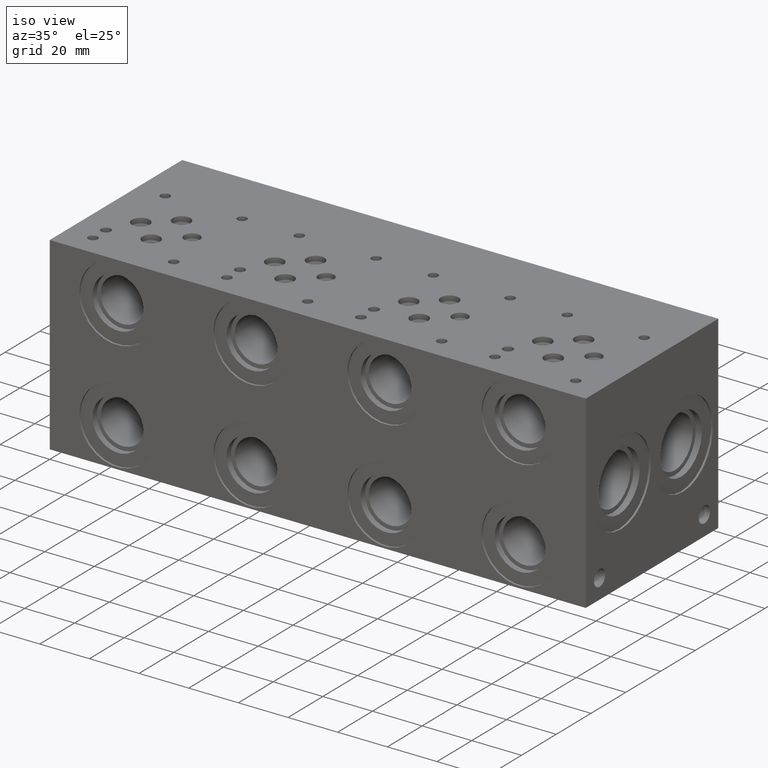
[diagram: clean part render]
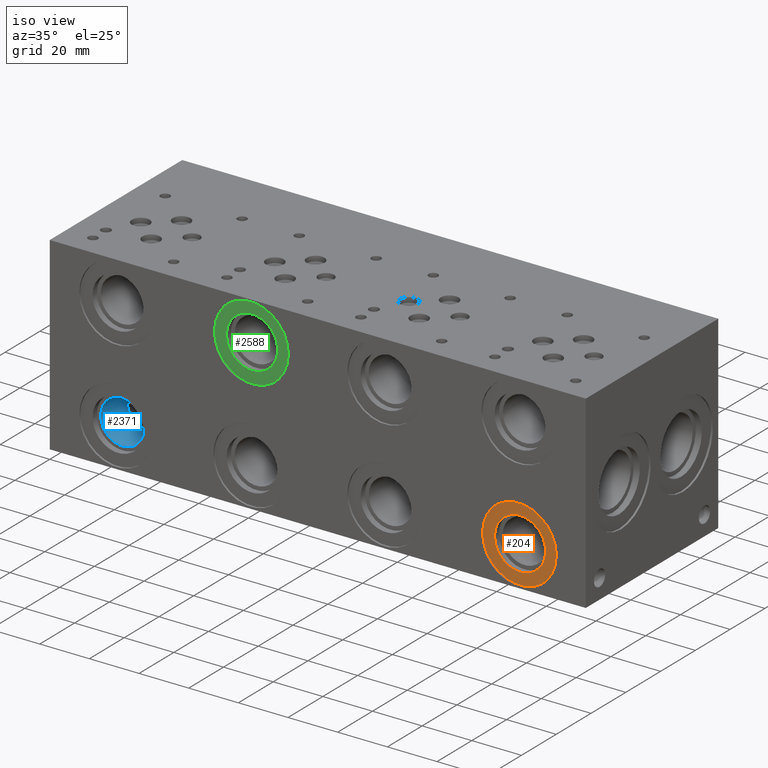
[diagram: same view with three faces highlighted in distinct colors, each labeled with its STEP entity id]
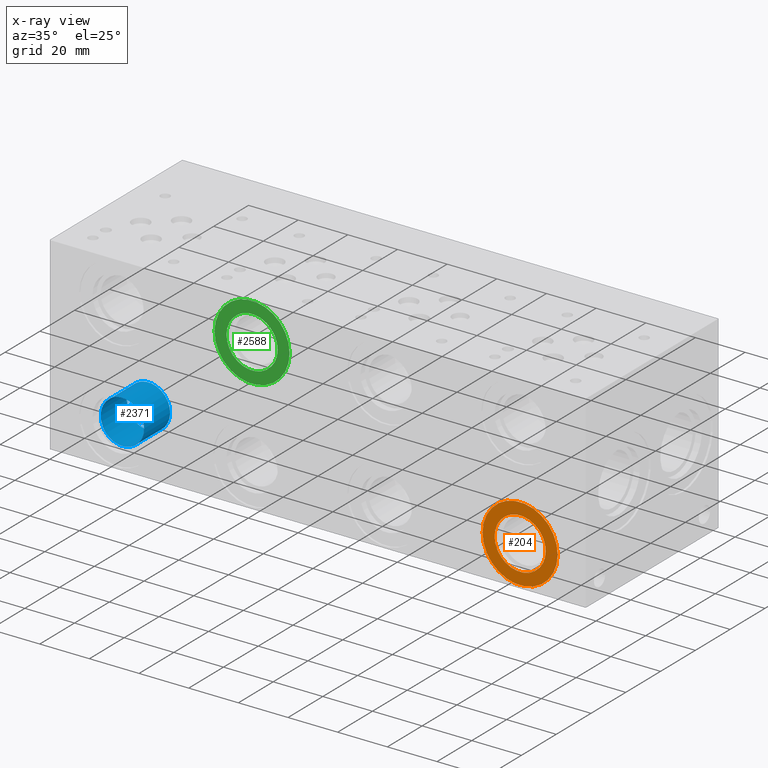
[diagram: x-ray of the same camera — body ghosted, the three highlighted faces saturated]
A machine part, iso view with three faces highlighted in distinct colors.
The next image is the same camera in x-ray (body ghosted, the three faces saturated) — at least one of them is partly hidden behind the body in this view.
Their STEP definitions:

[orange] entity #204 — the highlighted planar face has unit normal (0, 1, 0).
#170=CARTESIAN_POINT('',(199.1995,0.7874,15.875000000000002));
#171=VERTEX_POINT('',#170);
#172=CARTESIAN_POINT('',(188.89980000000003,0.7874,15.875000000000002));
#173=DIRECTION('',(0.0,-1.0,0.0));
#174=DIRECTION('',(1.0,0.0,0.0));
#175=AXIS2_PLACEMENT_3D('',#172,#173,#174);
#176=CIRCLE('',#175,10.299699999999987);
#177=EDGE_CURVE('',#171,#171,#176,.T.);
#185=CARTESIAN_POINT('',(201.61250000000001,0.7874,15.875000000000002));
#186=DIRECTION('',(0.0,1.0,0.0));
#187=DIRECTION('',(0.0,0.0,1.0));
#188=AXIS2_PLACEMENT_3D('',#185,#186,#187);
#189=PLANE('',#188);
#190=CARTESIAN_POINT('',(204.02550000000002,0.7874,15.875000000000002));
#191=VERTEX_POINT('',#190);
#192=CARTESIAN_POINT('',(188.89980000000003,0.7874,15.875000000000002));
#193=DIRECTION('',(0.0,-1.0,0.0));
#194=DIRECTION('',(1.0,0.0,0.0));
#195=AXIS2_PLACEMENT_3D('',#192,#193,#194);
#196=CIRCLE('',#195,15.125700000000002);
#197=EDGE_CURVE('',#191,#191,#196,.T.);
#198=ORIENTED_EDGE('',*,*,#197,.T.);
#199=EDGE_LOOP('',(#198));
#200=FACE_OUTER_BOUND('',#199,.T.);
#201=ORIENTED_EDGE('',*,*,#177,.F.);
#202=EDGE_LOOP('',(#201));
#203=FACE_BOUND('',#202,.T.);
#204=ADVANCED_FACE('',(#200,#203),#189,.F.);

[blue] entity #2371 — the highlighted cylindrical surface (bore or boss wall) has radius 8.7503 mm, axis along (0, -1, 0).
#2337=CARTESIAN_POINT('',(35.725100000000005,18.265211900000004,15.875000000000002));
#2338=VERTEX_POINT('',#2337);
#2339=CARTESIAN_POINT('',(26.974800000000002,18.265211900000004,15.875000000000002));
#2340=DIRECTION('',(0.0,-1.0,0.0));
#2341=DIRECTION('',(1.0,0.0,0.0));
#2342=AXIS2_PLACEMENT_3D('',#2339,#2340,#2341);
#2343=CIRCLE('',#2342,8.750300000000003);
#2344=EDGE_CURVE('',#2338,#2338,#2343,.T.);
#2352=CARTESIAN_POINT('',(26.974800000000002,10.77090595,15.875000000000002));
#2353=DIRECTION('',(0.0,-1.0,0.0));
#2354=DIRECTION('',(1.0,0.0,0.0));
#2355=AXIS2_PLACEMENT_3D('',#2352,#2353,#2354);
#2356=CYLINDRICAL_SURFACE('',#2355,8.750300000000003);
#2357=CARTESIAN_POINT('',(35.725100000000005,3.276600000000001,15.875000000000002));
#2358=VERTEX_POINT('',#2357);
#2359=CARTESIAN_POINT('',(26.974800000000002,3.276600000000001,15.875000000000002));
#2360=DIRECTION('',(0.0,-1.0,0.0));
#2361=DIRECTION('',(1.0,0.0,0.0));
#2362=AXIS2_PLACEMENT_3D('',#2359,#2360,#2361);
#2363=CIRCLE('',#2362,8.750300000000003);
#2364=EDGE_CURVE('',#2358,#2358,#2363,.T.);
#2365=ORIENTED_EDGE('',*,*,#2364,.T.);
#2366=EDGE_LOOP('',(#2365));
#2367=FACE_OUTER_BOUND('',#2366,.T.);
#2368=ORIENTED_EDGE('',*,*,#2344,.F.);
#2369=EDGE_LOOP('',(#2368));
#2370=FACE_BOUND('',#2369,.T.);
#2371=ADVANCED_FACE('',(#2367,#2370),#2356,.F.);

[green] entity #2588 — the highlighted planar face has unit normal (0, 1, 0).
#2554=CARTESIAN_POINT('',(91.249499999999998,0.7874,60.325000000000003));
#2555=VERTEX_POINT('',#2554);
#2556=CARTESIAN_POINT('',(80.949799999999996,0.7874,60.325000000000003));
#2557=DIRECTION('',(0.0,-1.0,0.0));
#2558=DIRECTION('',(1.0,0.0,0.0));
#2559=AXIS2_PLACEMENT_3D('',#2556,#2557,#2558);
#2560=CIRCLE('',#2559,10.299700000000005);
#2561=EDGE_CURVE('',#2555,#2555,#2560,.T.);
#2569=CARTESIAN_POINT('',(93.662500000000009,0.7874,60.325000000000003));
#2570=DIRECTION('',(0.0,1.0,0.0));
#2571=DIRECTION('',(0.0,0.0,1.0));
#2572=AXIS2_PLACEMENT_3D('',#2569,#2570,#2571);
#2573=PLANE('',#2572);
#2574=CARTESIAN_POINT('',(96.075500000000005,0.7874,60.325000000000003));
#2575=VERTEX_POINT('',#2574);
#2576=CARTESIAN_POINT('',(80.949799999999996,0.7874,60.325000000000003));
#2577=DIRECTION('',(0.0,-1.0,0.0));
#2578=DIRECTION('',(1.0,0.0,0.0));
#2579=AXIS2_PLACEMENT_3D('',#2576,#2577,#2578);
#2580=CIRCLE('',#2579,15.125700000000002);
#2581=EDGE_CURVE('',#2575,#2575,#2580,.T.);
#2582=ORIENTED_EDGE('',*,*,#2581,.T.);
#2583=EDGE_LOOP('',(#2582));
#2584=FACE_OUTER_BOUND('',#2583,.T.);
#2585=ORIENTED_EDGE('',*,*,#2561,.F.);
#2586=EDGE_LOOP('',(#2585));
#2587=FACE_BOUND('',#2586,.T.);
#2588=ADVANCED_FACE('',(#2584,#2587),#2573,.F.);